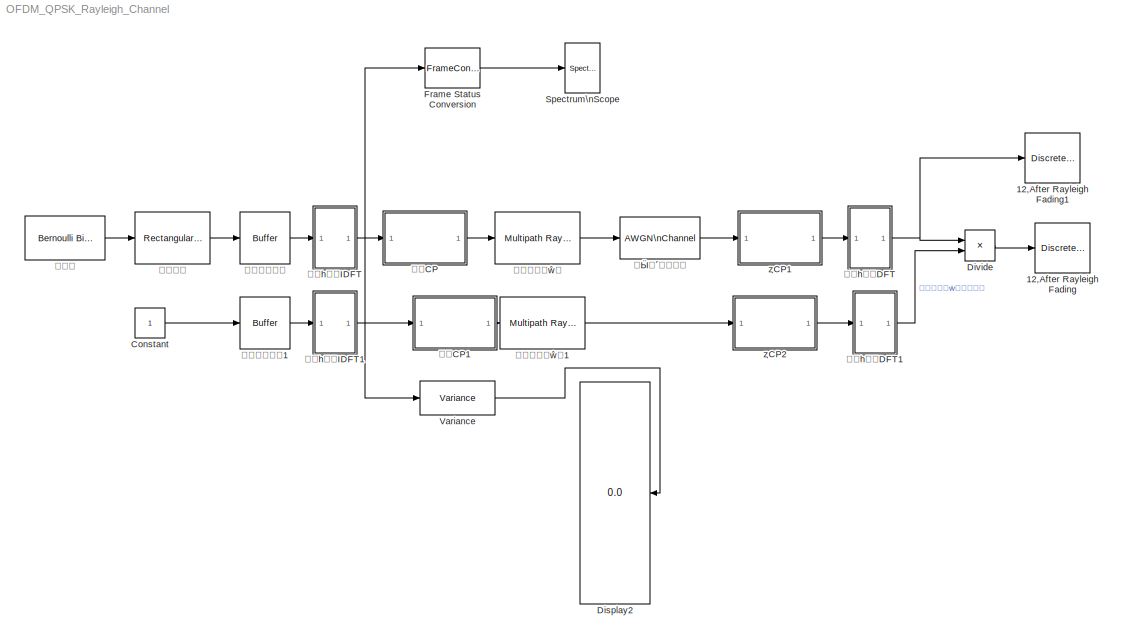
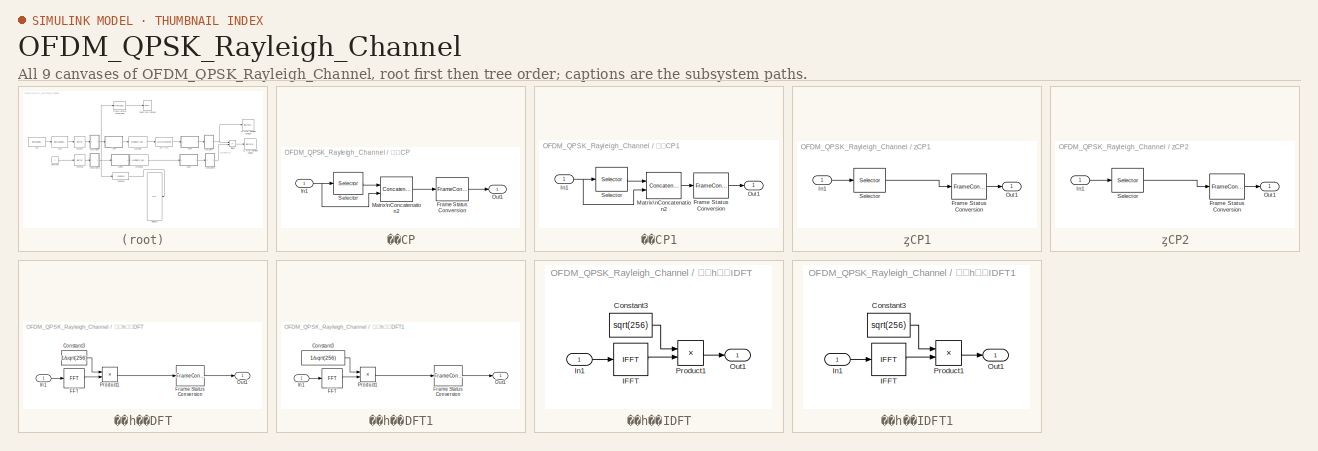
[diagram: thumbnail index - all 9 canvases of the model, root first then tree order]
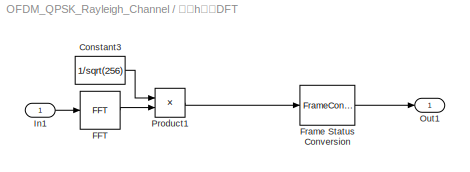
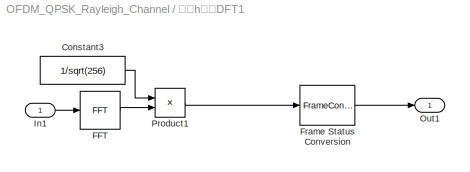
MODEL OFDM_QPSK_Rayleigh_Channel
KIND model
CONFIG PreLoadFcn = bitRate = 500000;\nbitsPerFrame = 200;\nmaxDopplerShift = 200;\ndelayVector = [0:3]*(4e-6);\ngainVector = [0:3]*(-3);\nLOSDopplerShift = 100;\nKFactor = 10;
BLOCK [Reference] 12,After Rayleigh Fading  REF=commsink2/Discrete-Time\nScatter Plot\nScope
  AxisGrid = on
  FigPos = figposition([1 40 25 40])
  FrameNumber = off
  LineColors = b
  LineMarkers = .
  Ports = [1]
  SID = 81
  SourceBlock = commsink2/Discrete-Time\nScatter Plot\nScope
  SourceType = Discrete-Time Scatter Plot Scope
  Tag = ScatterPlot
  block_type_ = scatter
  fading = on
  figTitle = Received signal after Rayleigh fading
  inphaseLabel = In-phase Amplitude
  numLinesMax = 8
  numNewFrames = 8
  numTraces = 100
  offsetEye = 0
  openScopeAtSimStart = off
  quadratureLabel = Quadrature Amplitude
  render = on
  sampPerSymb = 1
  xMax = 1.2
  xMin = -1.2
  yMax = 1.2
  yMin = -1.2
BLOCK [Reference] 12,After Rayleigh Fading1  REF=commsink2/Discrete-Time\nScatter Plot\nScope
  AxisGrid = on
  FigPos = figposition([1 40 25 40])
  FrameNumber = off
  LineColors = b
  LineMarkers = .
  Ports = [1]
  SID = 101
  SourceBlock = commsink2/Discrete-Time\nScatter Plot\nScope
  SourceType = Discrete-Time Scatter Plot Scope
  Tag = ScatterPlot
  block_type_ = scatter
  fading = on
  figTitle = Received signal after Rayleigh fading
  inphaseLabel = In-phase Amplitude
  numLinesMax = 8
  numNewFrames = 8
  numTraces = 100
  offsetEye = 0
  openScopeAtSimStart = off
  quadratureLabel = Quadrature Amplitude
  render = on
  sampPerSymb = 1
  xMax = 1.2
  xMin = -1.2
  yMax = 1.2
  yMin = -1.2
BLOCK [Constant] Constant
  FramePeriod = 256
  SID = 66
  SampleTime = 1/500000*2
  VectorParams1D = off
BLOCK [Display] Display2
  Decimation = 1
  Lockdown = off
  Ports = [1]
  SID = 105
BLOCK [Product] Divide
  InputSameDT = off
  Inputs = */
  OutDataTypeStr = Inherit: Inherit via internal rule
  Ports = [2, 1]
  RndMeth = Floor
  SID = 82
  SaturateOnIntegerOverflow = off
BLOCK [FrameConversion] Frame Status Conversion
  Ports = [1, 1]
  SID = 103
BLOCK [Reference] Spectrum\nScope  REF=dspsnks4/Spectrum\nScope
  AxisGrid = on
  AxisLegend = off
  AxisProperties = off
  AxisZoom = off
  BufferSize = 272
  DisplayProperties = off
  Domain = Frequency
  FFTlength = 272
  FigPos = get(0,'defaultfigureposition')
  FrameNumber = on
  HorizSpan = 1
  InheritXIncr = on
  LineProperties = off
  Memory = off
  OpenScopeAtSimStart = on
  OpenScopeImmediately = off
  Overlap = 0
  Ports = [1]
  RsSpecScope = 50
  SID = 102
  ScopeProperties = on
  SourceBlock = dspsnks4/Spectrum\nScope
  SourceType = Spectrum Scope
  TreatMby1Signals = One channel
  UseBuffer = off
  XAxisParamsVer = 6.9
  XDisplay = 0
  XIncr = 1.0
  XLabel = Samples
  XLimit = Auto
  XMax = 1
  XMin = 0
  XRange = Two-sided ((-Fs/2...Fs/2])
  XUnits = Hertz
  YLabel = Magnitude-squared, dB
  YMax = 10
  YMin = -10
  YUnits = dBW/Hertz
  betaSpecScope = 5
  inpFftLenInherit = off
  isFrameUpgraded = on
  numAvg = 1
  winsampSpecScope = Periodic
  wintypeSpecScope = Hann
BLOCK [Reference] Variance  REF=dspstat3/Variance
  InputProcessing = Columns as channels (frame based)
  LockScale = off
  Ports = [1, 1]
  SID = 104
  SourceBlock = dspstat3/Variance
  SourceType = Variance
  UserData = DataTag0
  UserDataPersistent = on
  accumFracLength = 30
  accumMode = Same as input-squared product
  accumWordLength = 32
  additionalParams = off
  allowOverrides = on
  dimension = 1
  directionMode = Each column
  memoryFracLength = 30
  memoryMode = Same as input-squared product
  memoryWordLength = 32
  outputFracLength = 30
  outputMode = Same as input-squared product
  outputWordLength = 32
  overflowMode = off
  prodOutputFracLength = 30
  prodOutputMode = Same as input
  prodOutputWordLength = 32
  reset_popup = None
  roiEnable = off
  roiFlag = off
  roiOutput = Individual statistics for each ROI
  roiPortion = Entire ROI
  roiType = Rectangles
  roundingMode = Floor
  run = on
  treatSBRowAsCol = on
BLOCK [Buffer] 串并变化
  N = 256
  SID = 41
  TreatMby1Signals = One channel
BLOCK [Buffer] 串并变化1
  N = 256
  SID = 80
  TreatMby1Signals = One channel
BLOCK [Reference] µ÷ÖÆ  REF=commdigbbndam3/Rectangular QAM\nModulator\nBaseband
  AvgPow = 1
  Enc = Gray
  InType = Bit
  M = 4
  Mapping = [0,1,2,3]
  MinDist = 2
  PeakPow = 1
  Ph = -pi/2
  Ports = [1, 1]
  PowType = Average Power
  SID = 12
  SourceBlock = commdigbbndam3/Rectangular QAM\nModulator\nBaseband
  SourceType = Rectangular QAM Modulator Baseband
  outDtype = double
  outFracLen = 15
  outFracLenMode = Best precision
  outUDDataType = sfix(16)
  outWordLen = 16
BLOCK [SubSystem] 归一化DFT
  FunctionWithSeparateData = off
  MaskHideContents = off
  MinAlgLoopOccurrences = off
  Opaque = off
  Ports = [1, 1]
  PropExecContextOutsideSubsystem = off
  RTWSystemCode = Auto
  RequestExecContextInheritance = off
  SID = 48
BLOCK [Constant] 归一化DFT/Constant3
  SID = 50
  Value = 1/sqrt(256)
BLOCK [Reference] 归一化DFT/FFT  REF=dspxfrm3/FFT
  BitRevOrder = off
  CompMethod = Table lookup
  FFTImplementation = Auto
  FFTLength = 64
  InheritFFTLength = on
  LockScale = off
  Ports = [1, 1]
  RowConvenienceOn = on
  SID = 54
  SkipNorm = off
  SourceBlock = dspxfrm3/FFT
  SourceType = FFT
  TableOpt = NEW
  TableOptActive = Speed
  accumDataTypeStr = Inherit: Inherit via internal rule
  accumFracLength = 30
  accumLastDataTypeStr = Inherit: Inherit via internal rule
  accumMode = Inherit via internal rule
  accumWordLength = 32
  additionalParams = off
  allowOverrides = on
  firstCoeffDataTypeStr = Inherit: Same word length as input
  firstCoeffFracLength = 15
  firstCoeffLastDataTypeStr = Inherit: Same word length as input
  firstCoeffMode = Same word length as input
  firstCoeffWordLength = 16
  outputDataTypeStr = Inherit: Inherit via internal rule
  outputFracLength = 15
  outputLastDataTypeStr = Inherit: Inherit via internal rule
  outputMax = []
  outputMin = []
  outputMode = Inherit via internal rule
  outputWordLength = 16
  overflowMode = off
  prodOutputDataTypeStr = Inherit: Inherit via internal rule
  prodOutputFracLength = 30
  prodOutputLastDataTypeStr = Inherit: Inherit via internal rule
  prodOutputMode = Inherit via internal rule
  prodOutputWordLength = 32
  roundingMode = Floor
BLOCK [FrameConversion] 归一化DFT/Frame Status Conversion
  Ports = [1, 1]
  SID = 93
BLOCK [Inport] 归一化DFT/In1
  IconDisplay = Port number
  SID = 49
BLOCK [Outport] 归一化DFT/Out1
  IconDisplay = Port number
  SID = 53
BLOCK [Product] 归一化DFT/Product1
  Ports = [2, 1]
  RndMeth = Floor
  SID = 52
BLOCK [SubSystem] 归一化DFT1
  FunctionWithSeparateData = off
  MaskHideContents = off
  MinAlgLoopOccurrences = off
  Opaque = off
  Ports = [1, 1]
  PropExecContextOutsideSubsystem = off
  RTWSystemCode = Auto
  RequestExecContextInheritance = off
  SID = 94
BLOCK [Constant] 归一化DFT1/Constant3
  SID = 96
  Value = 1/sqrt(256)
BLOCK [Reference] 归一化DFT1/FFT  REF=dspxfrm3/FFT
  BitRevOrder = off
  CompMethod = Table lookup
  FFTImplementation = Auto
  FFTLength = 64
  InheritFFTLength = on
  LockScale = off
  Ports = [1, 1]
  RowConvenienceOn = on
  SID = 97
  SkipNorm = off
  SourceBlock = dspxfrm3/FFT
  SourceType = FFT
  TableOpt = NEW
  TableOptActive = Speed
  accumDataTypeStr = Inherit: Inherit via internal rule
  accumFracLength = 30
  accumLastDataTypeStr = Inherit: Inherit via internal rule
  accumMode = Inherit via internal rule
  accumWordLength = 32
  additionalParams = off
  allowOverrides = on
  firstCoeffDataTypeStr = Inherit: Same word length as input
  firstCoeffFracLength = 15
  firstCoeffLastDataTypeStr = Inherit: Same word length as input
  firstCoeffMode = Same word length as input
  firstCoeffWordLength = 16
  outputDataTypeStr = Inherit: Inherit via internal rule
  outputFracLength = 15
  outputLastDataTypeStr = Inherit: Inherit via internal rule
  outputMax = []
  outputMin = []
  outputMode = Inherit via internal rule
  outputWordLength = 16
  overflowMode = off
  prodOutputDataTypeStr = Inherit: Inherit via internal rule
  prodOutputFracLength = 30
  prodOutputLastDataTypeStr = Inherit: Inherit via internal rule
  prodOutputMode = Inherit via internal rule
  prodOutputWordLength = 32
  roundingMode = Floor
BLOCK [FrameConversion] 归一化DFT1/Frame Status Conversion
  Ports = [1, 1]
  SID = 98
BLOCK [Inport] 归一化DFT1/In1
  IconDisplay = Port number
  SID = 95
BLOCK [Outport] 归一化DFT1/Out1
  IconDisplay = Port number
  SID = 100
BLOCK [Product] 归一化DFT1/Product1
  Ports = [2, 1]
  RndMeth = Floor
  SID = 99
BLOCK [SubSystem] 归一化IDFT
  FunctionWithSeparateData = off
  MaskHideContents = off
  MinAlgLoopOccurrences = off
  Opaque = off
  Ports = [1, 1]
  PropExecContextOutsideSubsystem = off
  RTWSystemCode = Auto
  RequestExecContextInheritance = off
  SID = 37
BLOCK [Constant] 归一化IDFT/Constant3
  SID = 28
  Value = sqrt(256)
BLOCK [Reference] 归一化IDFT/IFFT  REF=dspxfrm3/IFFT
  BitRevOrder = off
  CompMethod = Table lookup
  FFTImplementation = Auto
  FFTLength = 64
  InheritFFTLength = on
  LockScale = off
  Ports = [1, 1]
  RowConvenienceOn = on
  SID = 22
  SkipNorm = on
  SourceBlock = dspxfrm3/IFFT
  SourceType = IFFT
  TableOpt = NEW
  TableOptActive = Speed
  accumDataTypeStr = Inherit: Inherit via internal rule
  accumFracLength = 30
  accumLastDataTypeStr = Inherit: Inherit via internal rule
  accumMode = Inherit via internal rule
  accumWordLength = 32
  additionalParams = off
  allowOverrides = on
  cs_in = off
  firstCoeffDataTypeStr = Inherit: Same word length as input
  firstCoeffFracLength = 15
  firstCoeffLastDataTypeStr = Inherit: Same word length as input
  firstCoeffMode = Same word length as input
  firstCoeffWordLength = 16
  mode = Complex
  outSamplingMode = Sample based
  outputDataTypeStr = Inherit: Inherit via internal rule
  outputFracLength = 15
  outputLastDataTypeStr = Inherit: Inherit via internal rule
  outputMax = []
  outputMin = []
  outputMode = Inherit via internal rule
  outputWordLength = 16
  overflowMode = off
  prodOutputDataTypeStr = Inherit: Inherit via internal rule
  prodOutputFracLength = 30
  prodOutputLastDataTypeStr = Inherit: Inherit via internal rule
  prodOutputMode = Inherit via internal rule
  prodOutputWordLength = 32
  roundingMode = Floor
BLOCK [Inport] 归一化IDFT/In1
  IconDisplay = Port number
  SID = 39
BLOCK [Outport] 归一化IDFT/Out1
  IconDisplay = Port number
  SID = 38
BLOCK [Product] 归一化IDFT/Product1
  Ports = [2, 1]
  RndMeth = Floor
  SID = 29
BLOCK [SubSystem] 归一化IDFT1
  FunctionWithSeparateData = off
  MaskHideContents = off
  MinAlgLoopOccurrences = off
  Opaque = off
  Ports = [1, 1]
  PropExecContextOutsideSubsystem = off
  RTWSystemCode = Auto
  RequestExecContextInheritance = off
  SID = 73
BLOCK [Constant] 归一化IDFT1/Constant3
  SID = 75
  Value = sqrt(256)
BLOCK [Reference] 归一化IDFT1/IFFT  REF=dspxfrm3/IFFT
  BitRevOrder = off
  CompMethod = Table lookup
  FFTImplementation = Auto
  FFTLength = 64
  InheritFFTLength = on
  LockScale = off
  Ports = [1, 1]
  RowConvenienceOn = on
  SID = 76
  SkipNorm = on
  SourceBlock = dspxfrm3/IFFT
  SourceType = IFFT
  TableOpt = NEW
  TableOptActive = Speed
  accumDataTypeStr = Inherit: Inherit via internal rule
  accumFracLength = 30
  accumLastDataTypeStr = Inherit: Inherit via internal rule
  accumMode = Inherit via internal rule
  accumWordLength = 32
  additionalParams = off
  allowOverrides = on
  cs_in = off
  firstCoeffDataTypeStr = Inherit: Same word length as input
  firstCoeffFracLength = 15
  firstCoeffLastDataTypeStr = Inherit: Same word length as input
  firstCoeffMode = Same word length as input
  firstCoeffWordLength = 16
  mode = Complex
  outSamplingMode = Sample based
  outputDataTypeStr = Inherit: Inherit via internal rule
  outputFracLength = 15
  outputLastDataTypeStr = Inherit: Inherit via internal rule
  outputMax = []
  outputMin = []
  outputMode = Inherit via internal rule
  outputWordLength = 16
  overflowMode = off
  prodOutputDataTypeStr = Inherit: Inherit via internal rule
  prodOutputFracLength = 30
  prodOutputLastDataTypeStr = Inherit: Inherit via internal rule
  prodOutputMode = Inherit via internal rule
  prodOutputWordLength = 32
  roundingMode = Floor
BLOCK [Inport] 归一化IDFT1/In1
  IconDisplay = Port number
  SID = 74
BLOCK [Outport] 归一化IDFT1/Out1
  IconDisplay = Port number
  SID = 78
BLOCK [Product] 归一化IDFT1/Product1
  Ports = [2, 1]
  RndMeth = Floor
  SID = 77
BLOCK [SubSystem] ¼ÓCP
  FunctionWithSeparateData = off
  MaskHideContents = off
  MinAlgLoopOccurrences = off
  Opaque = off
  Ports = [1, 1]
  PropExecContextOutsideSubsystem = off
  RTWSystemCode = Auto
  RequestExecContextInheritance = off
  SID = 34
BLOCK [FrameConversion] ¼ÓCP/Frame Status Conversion
  Ports = [1, 1]
  SID = 33
BLOCK [Inport] ¼ÓCP/In1
  IconDisplay = Port number
  SID = 35
BLOCK [Concatenate] ¼ÓCP/Matrix\nConcatenation2
  Ports = [2, 1]
  SID = 30
BLOCK [Outport] ¼ÓCP/Out1
  IconDisplay = Port number
  SID = 36
BLOCK [Selector] ¼ÓCP/Selector
  IndexOptions = Index vector (dialog)
  Indices = [256-16+1:1:256]
  InputPortWidth = 256
  OutputSizes = 1
  Ports = [1, 1]
  SID = 23
BLOCK [SubSystem] ¼ÓCP1
  FunctionWithSeparateData = off
  MaskHideContents = off
  MinAlgLoopOccurrences = off
  Opaque = off
  Ports = [1, 1]
  PropExecContextOutsideSubsystem = off
  RTWSystemCode = Auto
  RequestExecContextInheritance = off
  SID = 67
BLOCK [FrameConversion] ¼ÓCP1/Frame Status Conversion
  Ports = [1, 1]
  SID = 69
BLOCK [Inport] ¼ÓCP1/In1
  IconDisplay = Port number
  SID = 68
BLOCK [Concatenate] ¼ÓCP1/Matrix\nConcatenation2
  Ports = [2, 1]
  SID = 70
BLOCK [Outport] ¼ÓCP1/Out1
  IconDisplay = Port number
  SID = 72
BLOCK [Selector] ¼ÓCP1/Selector
  IndexOptions = Index vector (dialog)
  Indices = [256-16+1:1:256]
  InputPortWidth = 256
  OutputSizes = 1
  Ports = [1, 1]
  SID = 71
BLOCK [Reference] 加高斯噪声  REF=commchan3/AWGN\nChannel
  EbNodB = 10
  EsNodB = 15
  InputProcessing = Inherited (this choice will be removed - see release notes)
  Ports = [1, 1]
  Ps = 1
  SID = 14
  SNRdB = 200
  SourceBlock = commchan3/AWGN\nChannel
  SourceType = AWGN Channel
  Tsym = 1e-6
  UserData = DataTag1
  UserDataPersistent = on
  bitsPerSym = 1
  noiseMode = Signal to noise ratio  (SNR)
  seed = 67
  variance = 1
BLOCK [SubSystem] È¥CP1
  FunctionWithSeparateData = off
  MaskHideContents = off
  MinAlgLoopOccurrences = off
  Opaque = off
  Ports = [1, 1]
  PropExecContextOutsideSubsystem = off
  RTWSystemCode = Auto
  RequestExecContextInheritance = off
  SID = 42
BLOCK [FrameConversion] È¥CP1/Frame Status Conversion
  Ports = [1, 1]
  SID = 44
BLOCK [Inport] È¥CP1/In1
  IconDisplay = Port number
  SID = 43
BLOCK [Outport] È¥CP1/Out1
  IconDisplay = Port number
  SID = 47
BLOCK [Selector] È¥CP1/Selector
  IndexOptions = Index vector (dialog)
  Indices = [16+1:1:256+16]
  InputPortWidth = 256+16
  OutputSizes = 1
  Ports = [1, 1]
  SID = 46
BLOCK [SubSystem] È¥CP2
  FunctionWithSeparateData = off
  MaskHideContents = off
  MinAlgLoopOccurrences = off
  Opaque = off
  Ports = [1, 1]
  PropExecContextOutsideSubsystem = off
  RTWSystemCode = Auto
  RequestExecContextInheritance = off
  SID = 88
BLOCK [FrameConversion] È¥CP2/Frame Status Conversion
  Ports = [1, 1]
  SID = 90
BLOCK [Inport] È¥CP2/In1
  IconDisplay = Port number
  SID = 89
BLOCK [Outport] È¥CP2/Out1
  IconDisplay = Port number
  SID = 92
BLOCK [Selector] È¥CP2/Selector
  IndexOptions = Index vector (dialog)
  Indices = [16+1:1:256+16]
  InputPortWidth = 256+16
  OutputSizes = 1
  Ports = [1, 1]
  SID = 91
BLOCK [Reference] ÈðÀûÐÅµÀ  REF=commchan3/Multipath Rayleigh\nFading Channel
  Ports = [1, 1]
  SID = 13
  SourceBlock = commchan3/Multipath Rayleigh\nFading Channel
  SourceType = Multipath Rayleigh Fading Channel
  avgPathGaindB = [ 0    -3 ]
  centerFreqGaussian1 = 0.0
  centerFreqGaussian2 = 0.0
  coeffBell = 9
  coeffRounded = [1 -1.72 0.785]
  dopplerSpectrum = doppler.jakes
  enableProbe = 0
  freqMinMaxAJakes = [0 1]
  freqMinMaxRJakes = [0 1]
  gainGaussian1 = 0.5
  gainGaussian2 = 0.5
  maxDopplerShift = 0.01
  normalizePathGains = on
  openVisAtStart = off
  outDelay = off
  outPathGains = off
  pathDelays = [ 0    0.0400 ].*1e-4
  seed = 12345
  sigmaGaussian = 1/sqrt(2)
  sigmaGaussian1 = 1/sqrt(2)
  sigmaGaussian2 = 1/sqrt(2)
  spectrumType = Jakes
BLOCK [Reference] ÈðÀûÐÅµÀ1  REF=commchan3/Multipath Rayleigh\nFading Channel
  Ports = [1, 1]
  SID = 79
  SourceBlock = commchan3/Multipath Rayleigh\nFading Channel
  SourceType = Multipath Rayleigh Fading Channel
  avgPathGaindB = [ 0    -3 ]
  centerFreqGaussian1 = 0.0
  centerFreqGaussian2 = 0.0
  coeffBell = 9
  coeffRounded = [1 -1.72 0.785]
  dopplerSpectrum = doppler.jakes
  enableProbe = 0
  freqMinMaxAJakes = [0 1]
  freqMinMaxRJakes = [0 1]
  gainGaussian1 = 0.5
  gainGaussian2 = 0.5
  maxDopplerShift = 0.01
  normalizePathGains = on
  openVisAtStart = off
  outDelay = off
  outPathGains = off
  pathDelays = [ 0    0.0400 ].*1e-4
  seed = 12345
  sigmaGaussian = 1/sqrt(2)
  sigmaGaussian1 = 1/sqrt(2)
  sigmaGaussian2 = 1/sqrt(2)
  spectrumType = Jakes
BLOCK [Reference] ÐÅÔ´  REF=commrandsrc2/Bernoulli Binary\nGenerator
  P = 0.5
  Ports = [0, 1]
  SID = 4
  SourceBlock = commrandsrc2/Bernoulli Binary\nGenerator
  SourceType = Bernoulli Binary Generator
  Ts = 1/500000
  frameBased = on
  orient = off
  outDataType = double
  sampPerFrame = 2
  seed = 61
LINE Constant:1 -> 串并变化1:1
LINE Divide:1 -> 12,After Rayleigh Fading:1
LINE Frame Status Conversion:1 -> Spectrum\nScope:1
LINE Variance:1 -> Display2:1
LINE 串并变化1:1 -> 归一化IDFT1:1
LINE 串并变化:1 -> 归一化IDFT:1
LINE µ÷ÖÆ:1 -> 串并变化:1
LINE 归一化DFT/Constant3:1 -> 归一化DFT/Product1:1
LINE 归一化DFT/FFT:1 -> 归一化DFT/Product1:2
LINE 归一化DFT/Frame Status Conversion:1 -> 归一化DFT/Out1:1
LINE 归一化DFT/In1:1 -> 归一化DFT/FFT:1
LINE 归一化DFT/Product1:1 -> 归一化DFT/Frame Status Conversion:1
LINE 归一化DFT1/Constant3:1 -> 归一化DFT1/Product1:1
LINE 归一化DFT1/FFT:1 -> 归一化DFT1/Product1:2
LINE 归一化DFT1/Frame Status Conversion:1 -> 归一化DFT1/Out1:1
LINE 归一化DFT1/In1:1 -> 归一化DFT1/FFT:1
LINE 归一化DFT1/Product1:1 -> 归一化DFT1/Frame Status Conversion:1
LINE 归一化DFT1:1 -> Divide:2
NET 归一化DFT:1 -> 12,After Rayleigh Fading1:1, Divide:1
LINE 归一化IDFT/Constant3:1 -> 归一化IDFT/Product1:1
LINE 归一化IDFT/IFFT:1 -> 归一化IDFT/Product1:2
LINE 归一化IDFT/In1:1 -> 归一化IDFT/IFFT:1
LINE 归一化IDFT/Product1:1 -> 归一化IDFT/Out1:1
LINE 归一化IDFT1/Constant3:1 -> 归一化IDFT1/Product1:1
LINE 归一化IDFT1/IFFT:1 -> 归一化IDFT1/Product1:2
LINE 归一化IDFT1/In1:1 -> 归一化IDFT1/IFFT:1
LINE 归一化IDFT1/Product1:1 -> 归一化IDFT1/Out1:1
NET 归一化IDFT1:1 -> Frame Status Conversion:1, Variance:1, ¼ÓCP1:1
LINE 归一化IDFT:1 -> ¼ÓCP:1
LINE ¼ÓCP/Frame Status Conversion:1 -> ¼ÓCP/Out1:1
NET ¼ÓCP/In1:1 -> ¼ÓCP/Matrix\nConcatenation2:2, ¼ÓCP/Selector:1
LINE ¼ÓCP/Matrix\nConcatenation2:1 -> ¼ÓCP/Frame Status Conversion:1
LINE ¼ÓCP/Selector:1 -> ¼ÓCP/Matrix\nConcatenation2:1
LINE ¼ÓCP1/Frame Status Conversion:1 -> ¼ÓCP1/Out1:1
NET ¼ÓCP1/In1:1 -> ¼ÓCP1/Matrix\nConcatenation2:2, ¼ÓCP1/Selector:1
LINE ¼ÓCP1/Matrix\nConcatenation2:1 -> ¼ÓCP1/Frame Status Conversion:1
LINE ¼ÓCP1/Selector:1 -> ¼ÓCP1/Matrix\nConcatenation2:1
LINE ¼ÓCP1:1 -> ÈðÀûÐÅµÀ1:1
LINE ¼ÓCP:1 -> ÈðÀûÐÅµÀ:1
LINE 加高斯噪声:1 -> È¥CP1:1
LINE È¥CP1/Frame Status Conversion:1 -> È¥CP1/Out1:1
LINE È¥CP1/In1:1 -> È¥CP1/Selector:1
LINE È¥CP1/Selector:1 -> È¥CP1/Frame Status Conversion:1
LINE È¥CP1:1 -> 归一化DFT:1
LINE È¥CP2/Frame Status Conversion:1 -> È¥CP2/Out1:1
LINE È¥CP2/In1:1 -> È¥CP2/Selector:1
LINE È¥CP2/Selector:1 -> È¥CP2/Frame Status Conversion:1
LINE È¥CP2:1 -> 归一化DFT1:1
LINE ÈðÀûÐÅµÀ1:1 -> È¥CP2:1
LINE ÈðÀûÐÅµÀ:1 -> 加高斯噪声:1
LINE ÐÅÔ´:1 -> µ÷ÖÆ:1
note: NET lines group one-source signal fan-out (src -> all destinations, sorted); 1:1 wires keep LINE
